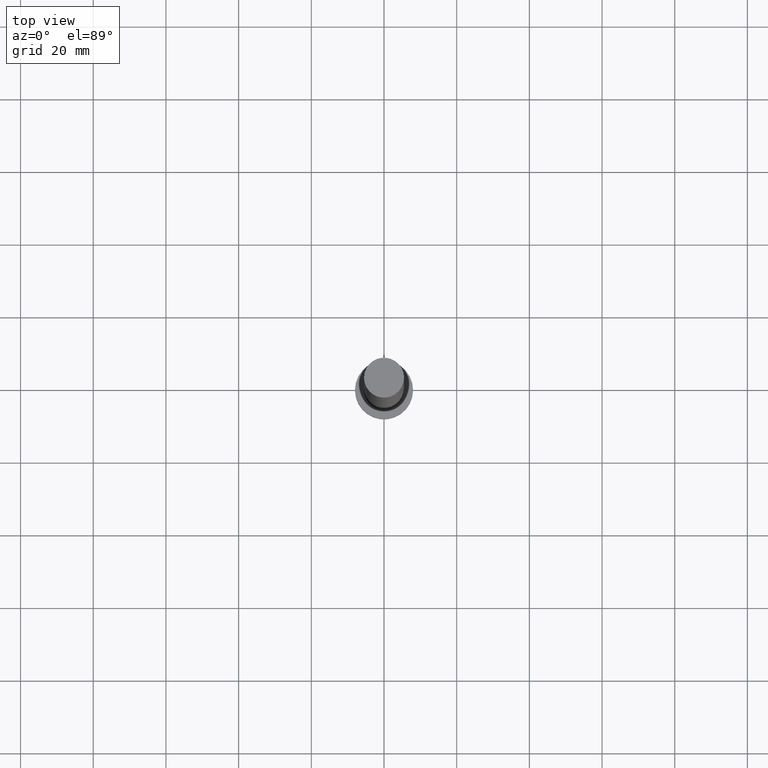
[diagram: clean part render]
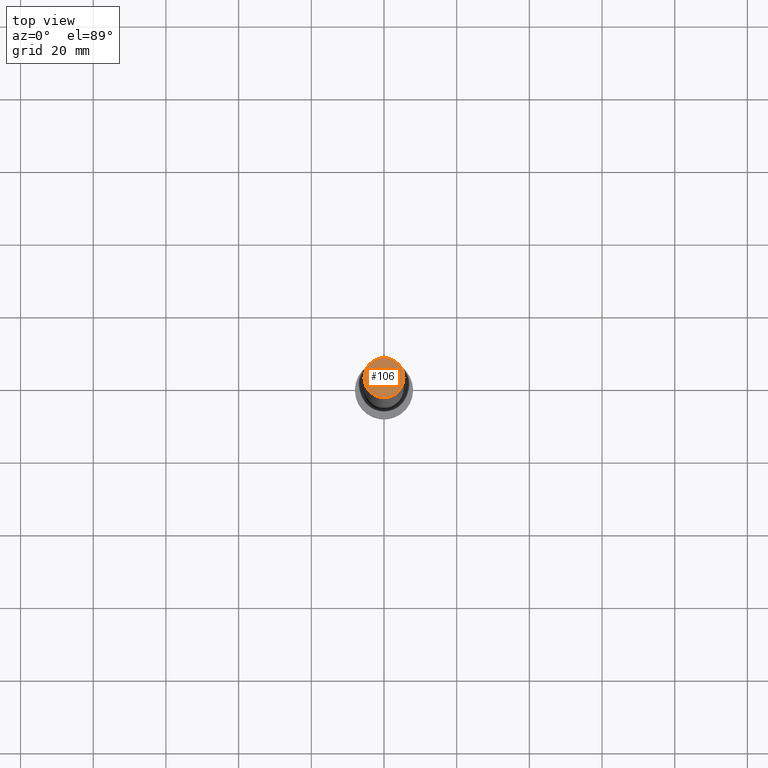
[diagram: same view with one face highlighted and labeled with its STEP entity id]
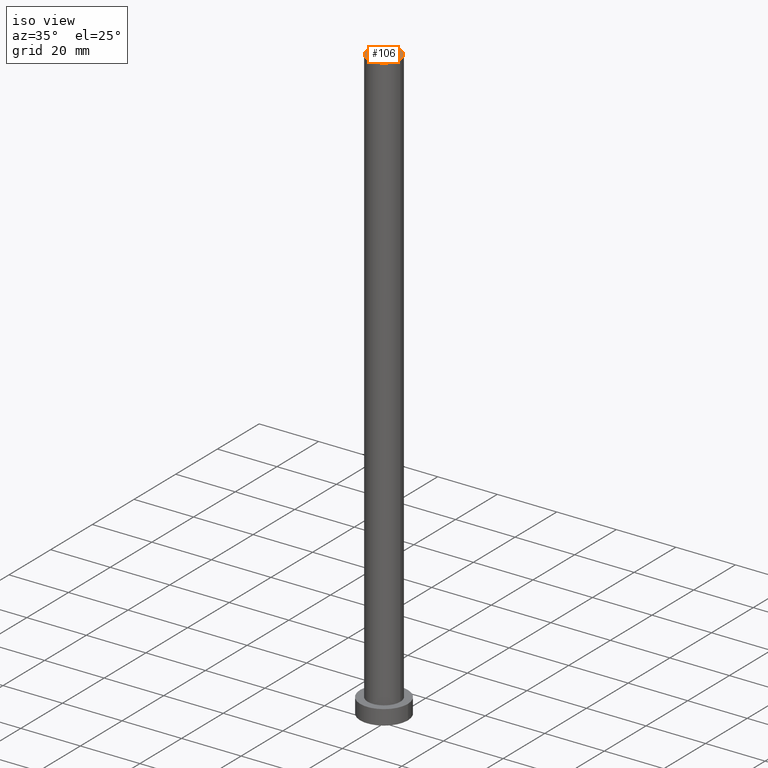
[diagram: same view with one face highlighted and labeled with its STEP entity id]
A machine part, top view. The second image highlights one B-rep face of the part: STEP entity #106.
A second angle (iso view) of the same face is appended — the face is thin or edge-on in the first view.
In plain terms, the highlighted planar face has unit normal (0, 0, 1).
Its self-contained STEP definition (entity closure, byte-faithful):
#1 = CARTESIAN_POINT ( 'NONE',  ( -5.500000000000000000, 0.000000000000000000, 200.0000000000000000 ) ) ;
#6 = AXIS2_PLACEMENT_3D ( 'NONE', #90, #32, #189 ) ;
#13 = CARTESIAN_POINT ( 'NONE',  ( 0.000000000000000000, 0.000000000000000000, 200.0000000000000000 ) ) ;
#32 = DIRECTION ( 'NONE',  ( 0.000000000000000000, 0.000000000000000000, 1.000000000000000000 ) ) ;
#42 = EDGE_LOOP ( 'NONE', ( #209, #137 ) ) ;
#67 = FACE_OUTER_BOUND ( 'NONE', #42, .T. ) ;
#70 = DIRECTION ( 'NONE',  ( 0.000000000000000000, 0.000000000000000000, 1.000000000000000000 ) ) ;
#78 = EDGE_CURVE ( 'NONE', #221, #206, #82, .T. ) ;
#82 = CIRCLE ( 'NONE', #231, 5.500000000000000000 ) ;
#89 = PLANE ( 'NONE',  #6 ) ;
#90 = CARTESIAN_POINT ( 'NONE',  ( 0.000000000000000000, 0.000000000000000000, 200.0000000000000000 ) ) ;
#106 = ADVANCED_FACE ( 'NONE', ( #67 ), #89, .T. ) ;
#124 = CARTESIAN_POINT ( 'NONE',  ( 0.000000000000000000, 0.000000000000000000, 200.0000000000000000 ) ) ;
#125 = DIRECTION ( 'NONE',  ( 1.000000000000000000, 0.000000000000000000, 0.000000000000000000 ) ) ;
#127 = CARTESIAN_POINT ( 'NONE',  ( 5.500000000000000000, 6.735557395310442023E-16, 200.0000000000000000 ) ) ;
#128 = EDGE_CURVE ( 'NONE', #206, #221, #251, .T. ) ;
#132 = AXIS2_PLACEMENT_3D ( 'NONE', #124, #70, #146 ) ;
#137 = ORIENTED_EDGE ( 'NONE', *, *, #78, .T. ) ;
#146 = DIRECTION ( 'NONE',  ( 1.000000000000000000, 0.000000000000000000, 0.000000000000000000 ) ) ;
#189 = DIRECTION ( 'NONE',  ( 1.000000000000000000, 0.000000000000000000, -0.000000000000000000 ) ) ;
#206 = VERTEX_POINT ( 'NONE', #1 ) ;
#209 = ORIENTED_EDGE ( 'NONE', *, *, #128, .T. ) ;
#221 = VERTEX_POINT ( 'NONE', #127 ) ;
#231 = AXIS2_PLACEMENT_3D ( 'NONE', #13, #247, #125 ) ;
#247 = DIRECTION ( 'NONE',  ( 0.000000000000000000, 0.000000000000000000, 1.000000000000000000 ) ) ;
#251 = CIRCLE ( 'NONE', #132, 5.500000000000000000 ) ;